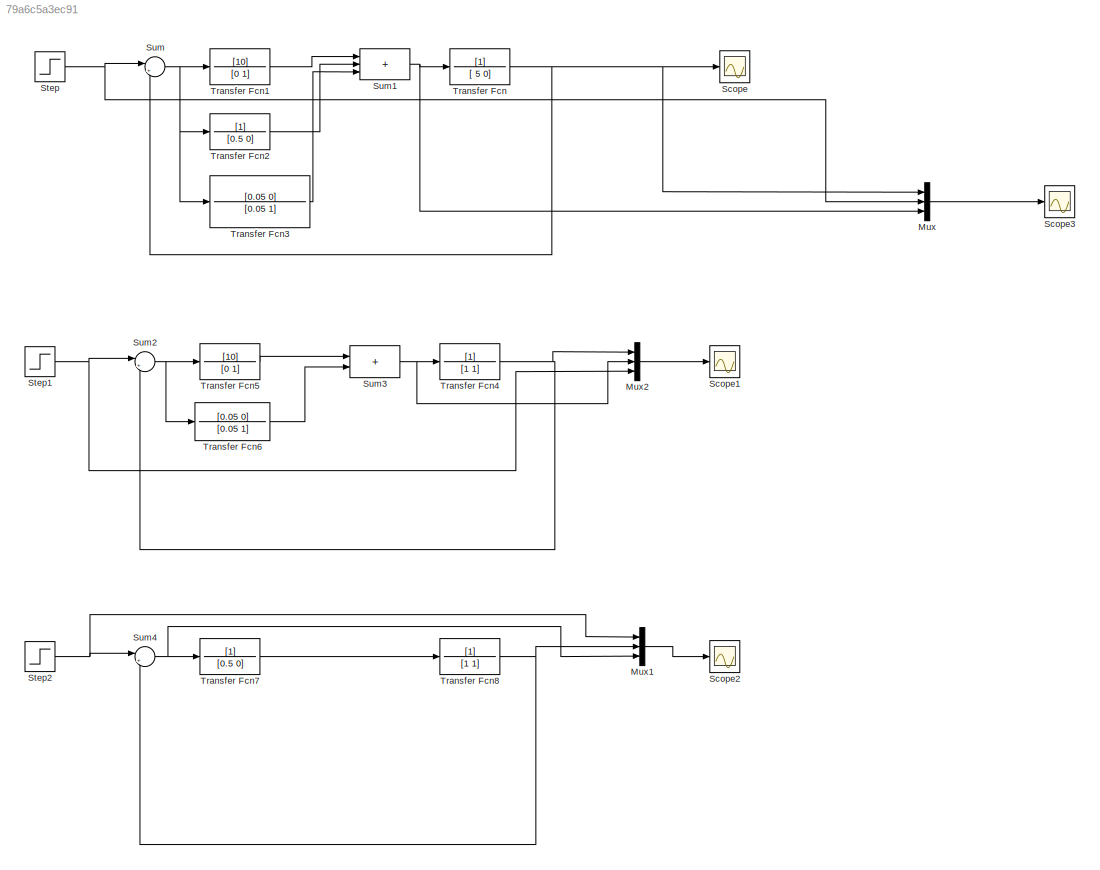
MODEL mdl_79a6c5a3ec91
KIND model
CONFIG AbsTol = auto
CONFIG EnableMultiTasking = off
CONFIG FixedStep = auto
CONFIG MaxStep = auto
CONFIG MinStep = auto
CONFIG RelTol = 1e-3
CONFIG SampleTimeConstraint = Unconstrained
CONFIG SolverName = VariableStepAuto
CONFIG StartTime = 0.0
CONFIG StopTime = 100.0
BLOCK [Mux] Mux
  DisplayOption = bar
  Inputs = 3
BLOCK [Mux] Mux1
  DisplayOption = bar
  Inputs = 3
BLOCK [Mux] Mux2
  DisplayOption = bar
  Inputs = 3
BLOCK [Scope] Scope
  Floating = off
  NumInputPorts = 1
  ScopeSpecificationString = Simulink.scopes.TimeScopeBlockCfg('CurrentConfiguration', extmgr.ConfigurationSet(extmgr.Configuration('Core','General UI',true),extmgr.Configuration('Core','Source UI',true),extmgr.Configuration('Sources','WiredSimulink',true),extmgr.Configuration('Visuals','Time Domain',true,'SerializedDisplays',{struct('MinYLimReal','0.6924','MaxYLimReal','0.81896','YLabelReal','','MinYLimMag','0.6924','MaxYLim...<+1404ch>
BLOCK [Scope] Scope1
  Floating = off
  NumInputPorts = 1
  ScopeSpecificationString = Simulink.scopes.TimeScopeBlockCfg('CurrentConfiguration', extmgr.ConfigurationSet(extmgr.Configuration('Core','General UI',true),extmgr.Configuration('Core','Source UI',true),extmgr.Configuration('Sources','WiredSimulink',true,'DataLoggingVariableName','ScopeData1'),extmgr.Configuration('Visuals','Time Domain',true,'SerializedDisplays',{struct('MinYLimReal','0.09546','MaxYLimReal','1.20023','YLabe...<+1432ch>
BLOCK [Scope] Scope2
  Floating = off
  NumInputPorts = 1
  ScopeSpecificationString = Simulink.scopes.TimeScopeBlockCfg('CurrentConfiguration', extmgr.ConfigurationSet(extmgr.Configuration('Core','General UI',true),extmgr.Configuration('Core','Source UI',true),extmgr.Configuration('Sources','WiredSimulink',true,'DataLoggingVariableName','ScopeData2'),extmgr.Configuration('Visuals','Time Domain',true,'SerializedDisplays',{struct('MinYLimReal','-0.24325','MaxYLimReal','1.04325','YLab...<+1462ch>
BLOCK [Scope] Scope3
  Floating = off
  NumInputPorts = 1
  ScopeSpecificationString = Simulink.scopes.TimeScopeBlockCfg('CurrentConfiguration', extmgr.ConfigurationSet(extmgr.Configuration('Core','General UI',true),extmgr.Configuration('Core','Source UI',true),extmgr.Configuration('Sources','WiredSimulink',true,'DataLoggingVariableName','ScopeData3'),extmgr.Configuration('Visuals','Time Domain',true,'SerializedDisplays',{struct('MinYLimReal','0.64415','MaxYLimReal','0.92396','YLabe...<+1484ch>
BLOCK [Step] Step
  After = 0.8
  Before = 0.5
  SampleTime = 0
  Time = 0.1
BLOCK [Step] Step1
  After = 0.8
  Before = 0.5
  SampleTime = 0
  Time = 0.1
BLOCK [Step] Step2
  After = 0.8
  Before = 0.5
  SampleTime = 0
  Time = 0.1
BLOCK [Sum] Sum
  Inputs = |+-
BLOCK [Sum] Sum1
  IconShape = rectangular
  Inputs = |+++
BLOCK [Sum] Sum2
  Inputs = |+-
BLOCK [Sum] Sum3
  IconShape = rectangular
  Inputs = |++
BLOCK [Sum] Sum4
  Inputs = |+-
BLOCK [TransferFcn] Transfer Fcn
  Denominator = [ 5 0]
BLOCK [TransferFcn] Transfer Fcn1
  Denominator = [0 1]
  Numerator = [10]
BLOCK [TransferFcn] Transfer Fcn2
  Denominator = [0.5 0]
BLOCK [TransferFcn] Transfer Fcn3
  Denominator = [0.05 1]
  Numerator = [0.05 0]
BLOCK [TransferFcn] Transfer Fcn4
  Denominator = [1 1]
BLOCK [TransferFcn] Transfer Fcn5
  Denominator = [0 1]
  Numerator = [10]
BLOCK [TransferFcn] Transfer Fcn6
  Denominator = [0.05 1]
  Numerator = [0.05 0]
BLOCK [TransferFcn] Transfer Fcn7
  Denominator = [0.5 0]
BLOCK [TransferFcn] Transfer Fcn8
  Denominator = [1 1]
LINE Mux1:1 -> Scope2:1
LINE Mux2:1 -> Scope1:1
LINE Mux:1 -> Scope3:1
NET Step1:1 -> Mux2:3, Sum2:1
NET Step2:1 -> Mux1:1, Sum4:1
NET Step:1 -> Mux:2, Sum:1
NET Sum1:1 -> Mux:3, Transfer Fcn:1
NET Sum2:1 -> Transfer Fcn5:1, Transfer Fcn6:1
NET Sum3:1 -> Mux2:2, Transfer Fcn4:1
NET Sum4:1 -> Mux1:3, Transfer Fcn7:1
NET Sum:1 -> Transfer Fcn1:1, Transfer Fcn2:1, Transfer Fcn3:1
LINE Transfer Fcn1:1 -> Sum1:1
LINE Transfer Fcn2:1 -> Sum1:2
LINE Transfer Fcn3:1 -> Sum1:3
NET Transfer Fcn4:1 -> Mux2:1, Sum2:2
LINE Transfer Fcn5:1 -> Sum3:1
LINE Transfer Fcn6:1 -> Sum3:2
LINE Transfer Fcn7:1 -> Transfer Fcn8:1
NET Transfer Fcn8:1 -> Mux1:2, Sum4:2
NET Transfer Fcn:1 -> Mux:1, Scope:1, Sum:2
note: NET lines group one-source signal fan-out (src -> all destinations, sorted); 1:1 wires keep LINE
